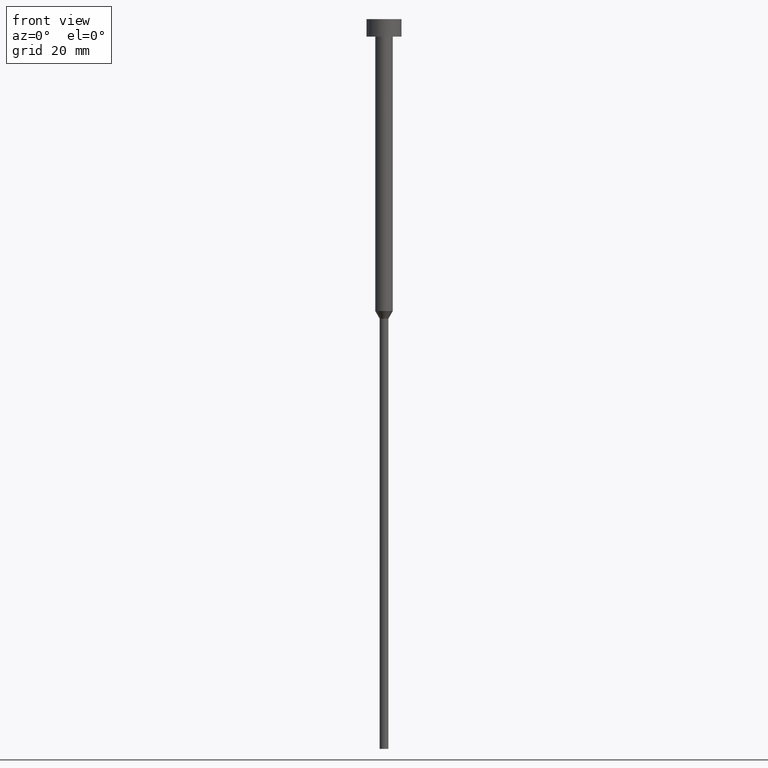
[diagram: clean part render]
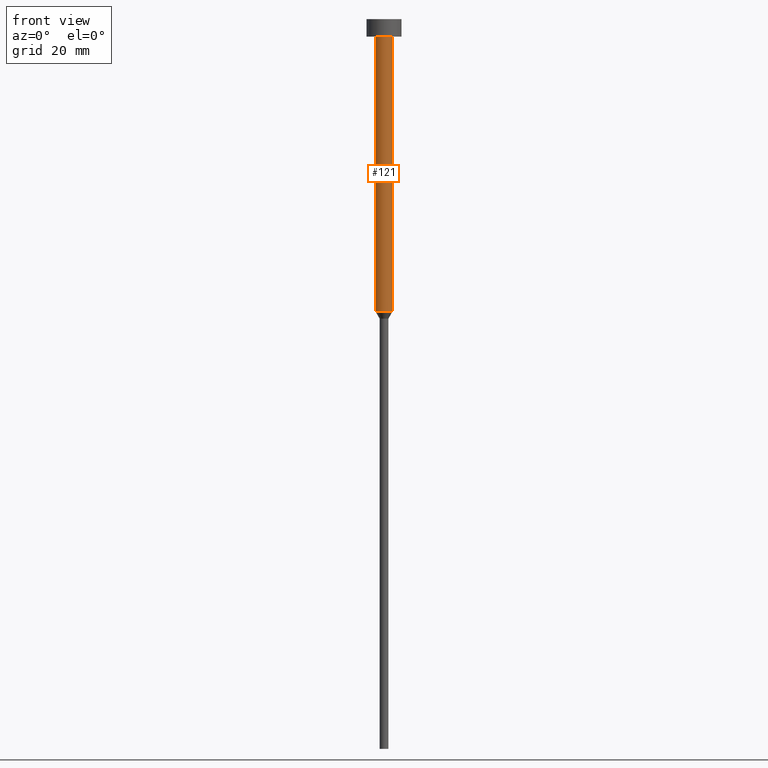
[diagram: same view with one face highlighted and labeled with its STEP entity id]
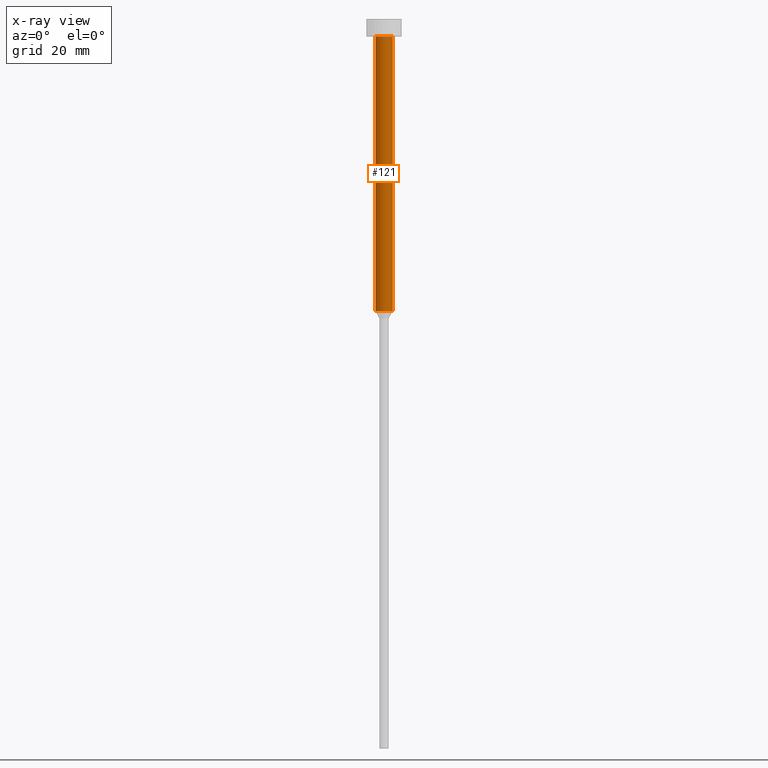
[diagram: x-ray of the same camera — body ghosted, the highlighted face saturated]
A machine part, front view. The second image highlights one B-rep face of the part: STEP entity #121.
The next image is the same camera in x-ray: the body ghosted, the highlighted face saturated — about 0% of this face is hidden behind the body in this view.
In plain terms, the highlighted cylindrical surface (edge-blend (fillet) strip) has radius 1.5 mm, axis along (-0, -0, 1).
Its self-contained STEP definition (entity closure, byte-faithful):
#8 = LINE ( 'NONE', #226, #292 ) ;
#29 = EDGE_CURVE ( 'NONE', #176, #261, #8, .T. ) ;
#35 = VERTEX_POINT ( 'NONE', #174 ) ;
#54 = DIRECTION ( 'NONE',  ( -0.000000000000000000, -0.000000000000000000, 1.000000000000000000 ) ) ;
#56 = CIRCLE ( 'NONE', #352, 1.500000000000000000 ) ;
#65 = EDGE_CURVE ( 'NONE', #93, #35, #157, .T. ) ;
#72 = CARTESIAN_POINT ( 'NONE',  ( 1.500000000000000000, 0.000000000000000000, -50.00000000000000000 ) ) ;
#75 = VECTOR ( 'NONE', #125, 1000.000000000000000 ) ;
#93 = VERTEX_POINT ( 'NONE', #345 ) ;
#101 = AXIS2_PLACEMENT_3D ( 'NONE', #348, #54, #327 ) ;
#104 = CARTESIAN_POINT ( 'NONE',  ( 0.000000000000000000, 0.000000000000000000, 0.000000000000000000 ) ) ;
#121 = ADVANCED_FACE ( 'NONE', ( #153 ), #123, .T. ) ;
#123 = CYLINDRICAL_SURFACE ( 'NONE', #197, 1.500000000000000000 ) ;
#125 = DIRECTION ( 'NONE',  ( -0.000000000000000000, -0.000000000000000000, 1.000000000000000000 ) ) ;
#150 = ORIENTED_EDGE ( 'NONE', *, *, #192, .F. ) ;
#153 = FACE_OUTER_BOUND ( 'NONE', #335, .T. ) ;
#157 = LINE ( 'NONE', #264, #75 ) ;
#174 = CARTESIAN_POINT ( 'NONE',  ( -1.500000000000000000, 1.836970198721029934E-16, -3.000000000000000888 ) ) ;
#176 = VERTEX_POINT ( 'NONE', #72 ) ;
#179 = ORIENTED_EDGE ( 'NONE', *, *, #29, .T. ) ;
#192 = EDGE_CURVE ( 'NONE', #35, #261, #56, .T. ) ;
#194 = ORIENTED_EDGE ( 'NONE', *, *, #65, .F. ) ;
#197 = AXIS2_PLACEMENT_3D ( 'NONE', #104, #233, #314 ) ;
#226 = CARTESIAN_POINT ( 'NONE',  ( 1.500000000000000000, 0.000000000000000000, 0.000000000000000000 ) ) ;
#233 = DIRECTION ( 'NONE',  ( -0.000000000000000000, -0.000000000000000000, 1.000000000000000000 ) ) ;
#239 = CIRCLE ( 'NONE', #101, 1.500000000000000000 ) ;
#261 = VERTEX_POINT ( 'NONE', #354 ) ;
#264 = CARTESIAN_POINT ( 'NONE',  ( -1.500000000000000000, 1.836970198721029934E-16, 0.000000000000000000 ) ) ;
#266 = CARTESIAN_POINT ( 'NONE',  ( 0.000000000000000000, 0.000000000000000000, -3.000000000000000888 ) ) ;
#269 = DIRECTION ( 'NONE',  ( -0.000000000000000000, -0.000000000000000000, 1.000000000000000000 ) ) ;
#292 = VECTOR ( 'NONE', #333, 1000.000000000000000 ) ;
#294 = DIRECTION ( 'NONE',  ( 1.000000000000000000, 0.000000000000000000, 0.000000000000000000 ) ) ;
#297 = EDGE_CURVE ( 'NONE', #93, #176, #239, .T. ) ;
#307 = ORIENTED_EDGE ( 'NONE', *, *, #297, .T. ) ;
#314 = DIRECTION ( 'NONE',  ( 1.000000000000000000, 0.000000000000000000, 0.000000000000000000 ) ) ;
#327 = DIRECTION ( 'NONE',  ( 1.000000000000000000, 0.000000000000000000, 0.000000000000000000 ) ) ;
#333 = DIRECTION ( 'NONE',  ( -0.000000000000000000, -0.000000000000000000, 1.000000000000000000 ) ) ;
#335 = EDGE_LOOP ( 'NONE', ( #194, #307, #179, #150 ) ) ;
#345 = CARTESIAN_POINT ( 'NONE',  ( -1.500000000000000000, 1.836970198721029934E-16, -50.00000000000000000 ) ) ;
#348 = CARTESIAN_POINT ( 'NONE',  ( 0.000000000000000000, 0.000000000000000000, -50.00000000000000000 ) ) ;
#352 = AXIS2_PLACEMENT_3D ( 'NONE', #266, #269, #294 ) ;
#354 = CARTESIAN_POINT ( 'NONE',  ( 1.500000000000000000, 0.000000000000000000, -3.000000000000000888 ) ) ;